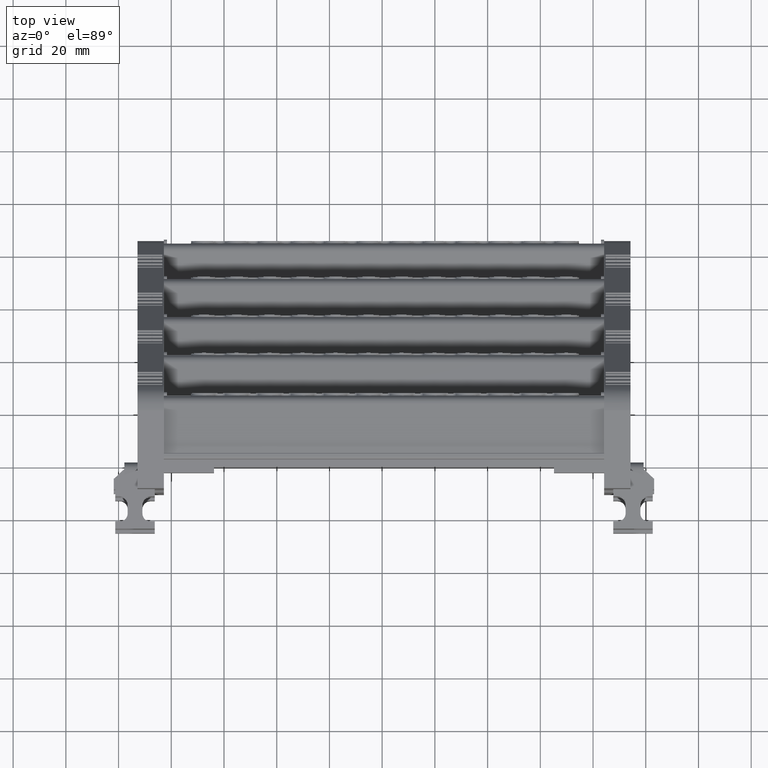
[diagram: clean part render]
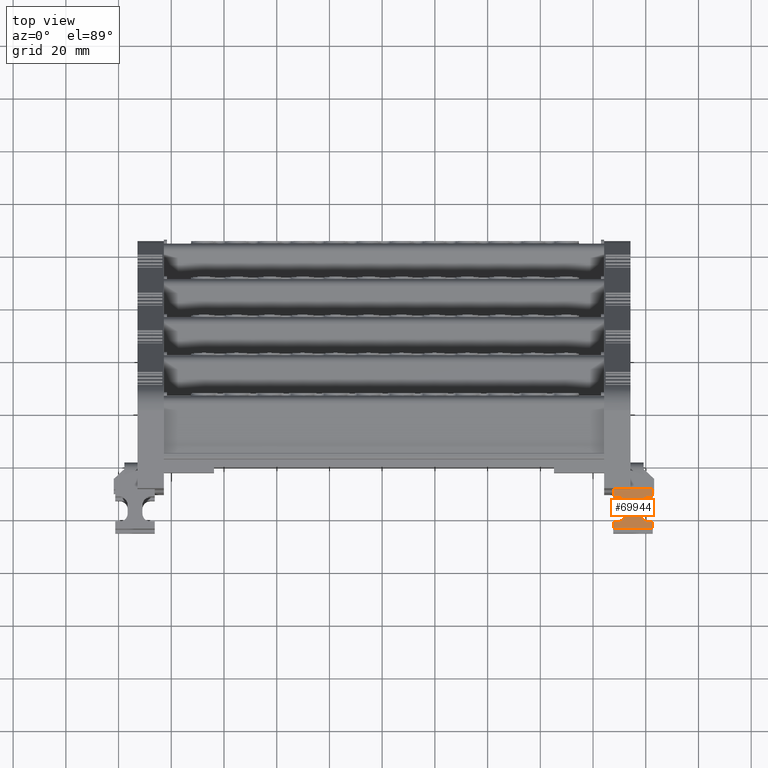
[diagram: same view with one face highlighted and labeled with its STEP entity id]
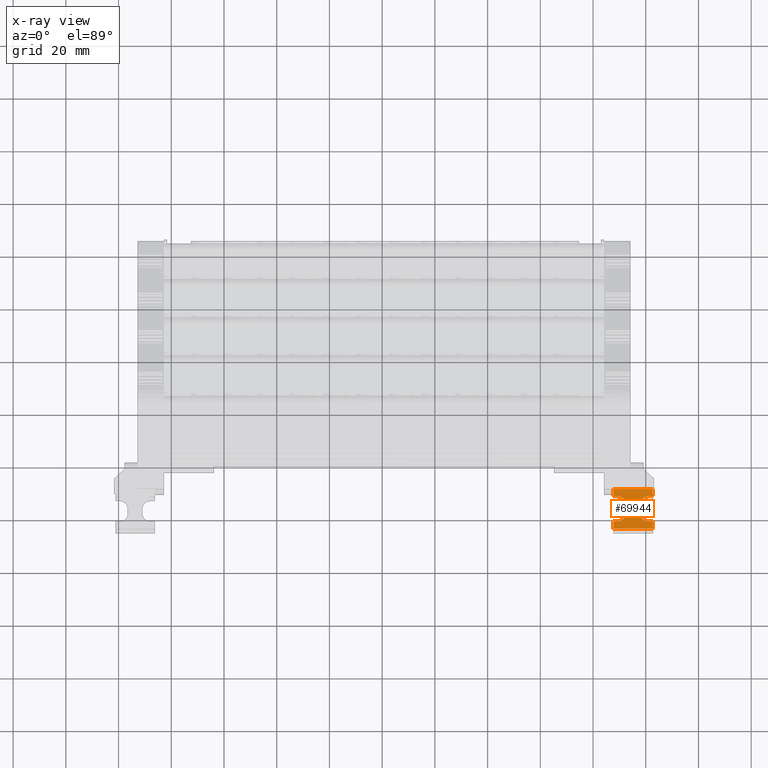
[diagram: x-ray of the same camera — body ghosted, the highlighted face saturated]
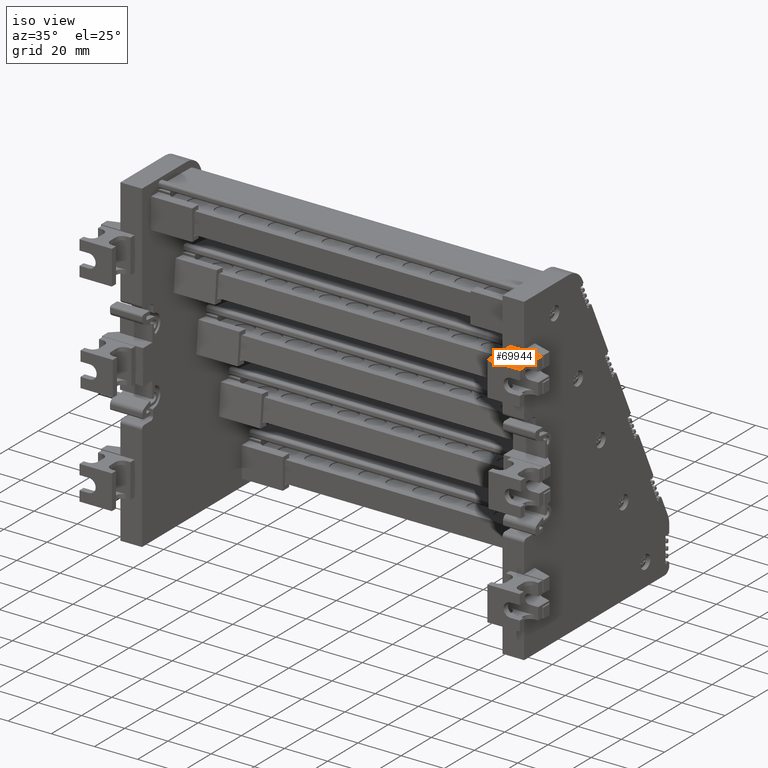
[diagram: same view with one face highlighted and labeled with its STEP entity id]
A machine part, top view. The second image highlights one B-rep face of the part: STEP entity #69944.
The next image is the same camera in x-ray: the body ghosted, the highlighted face saturated — about 0% of this face is hidden behind the body in this view.
A second angle (iso view) of the same face is appended — the face is thin or edge-on in the first view.
In plain terms, the highlighted planar face has unit normal (0, 0, -1).
Its self-contained STEP definition (entity closure, byte-faithful):
#25483 = ORIENTED_EDGE ( 'NONE', *, *, #184912, .F. ) ;
#25487 = ORIENTED_EDGE ( 'NONE', *, *, #184888, .T. ) ;
#25501 = ORIENTED_EDGE ( 'NONE', *, *, #184913, .F. ) ;
#25506 = ORIENTED_EDGE ( 'NONE', *, *, #184908, .F. ) ;
#25522 = ORIENTED_EDGE ( 'NONE', *, *, #184884, .F. ) ;
#25546 = ORIENTED_EDGE ( 'NONE', *, *, #139497, .T. ) ;
#25565 = ORIENTED_EDGE ( 'NONE', *, *, #184921, .F. ) ;
#25590 = ORIENTED_EDGE ( 'NONE', *, *, #184900, .F. ) ;
#25618 = ORIENTED_EDGE ( 'NONE', *, *, #139876, .F. ) ;
#25620 = ORIENTED_EDGE ( 'NONE', *, *, #184892, .T. ) ;
#25658 = ORIENTED_EDGE ( 'NONE', *, *, #184883, .T. ) ;
#25665 = ORIENTED_EDGE ( 'NONE', *, *, #184972, .F. ) ;
#25669 = ORIENTED_EDGE ( 'NONE', *, *, #184886, .F. ) ;
#25713 = ORIENTED_EDGE ( 'NONE', *, *, #184987, .T. ) ;
#25732 = ORIENTED_EDGE ( 'NONE', *, *, #184918, .F. ) ;
#25739 = ORIENTED_EDGE ( 'NONE', *, *, #185003, .F. ) ;
#37704 = DIRECTION ( 'NONE',  ( 0.0000000000000000000, 0.0000000000000000000, -1.000000000000000000 ) ) ;
#37721 = PLANE ( 'NONE',  #39354 ) ;
#37742 = FACE_OUTER_BOUND ( 'NONE', #149703, .T. ) ;
#37831 = DIRECTION ( 'NONE',  ( -1.000000000000000000, 0.0000000000000000000, -0.0000000000000000000 ) ) ;
#37838 = CARTESIAN_POINT ( 'NONE',  ( 47.64746846283503600, 89.68516386645208600, -292.2431131321286000 ) ) ;
#39354 = AXIS2_PLACEMENT_3D ( 'NONE', #37838, #37704, #37831 ) ;
#58407 = B_SPLINE_CURVE_WITH_KNOTS ( 'NONE', 3,
 ( #158381, #158314, #158383, #158362, #158391, #158308, #158331, #158343, #158397, #158393 ),
 .UNSPECIFIED., .F., .F.,
 ( 4, 2, 2, 2, 4 ),
 ( 0.0000000000000000000, 0.2500000000000000000, 0.5000000000000000000, 0.7500000000000000000, 1.000000000000000000 ),
 .UNSPECIFIED. ) ;
#58414 = B_SPLINE_CURVE_WITH_KNOTS ( 'NONE', 3,
 ( #158011, #158047, #157987, #157997, #157999, #158058, #158015, #158003, #158005, #158049 ),
 .UNSPECIFIED., .F., .F.,
 ( 4, 2, 2, 2, 4 ),
 ( 0.0000000000000000000, 0.2500000000000000000, 0.5000000000000000000, 0.7500000000000000000, 1.000000000000000000 ),
 .UNSPECIFIED. ) ;
#58446 = B_SPLINE_CURVE_WITH_KNOTS ( 'NONE', 3,
 ( #158527, #158580, #158557, #158568, #158439, #158417, #158584, #158438, #158426, #158491 ),
 .UNSPECIFIED., .F., .F.,
 ( 4, 2, 2, 2, 4 ),
 ( 0.0000000000000000000, 0.2500000000000000000, 0.5000000000000000000, 0.7500000000000000000, 1.000000000000000000 ),
 .UNSPECIFIED. ) ;
#58599 = B_SPLINE_CURVE_WITH_KNOTS ( 'NONE', 3,
 ( #161239, #161247, #161521, #161395, #161343, #161509, #161467, #161517, #161452, #161339 ),
 .UNSPECIFIED., .F., .F.,
 ( 4, 2, 2, 2, 4 ),
 ( 0.0000000000000000000, 0.2500000000000000000, 0.5000000000000000000, 0.7500000000000000000, 1.000000000000000000 ),
 .UNSPECIFIED. ) ;
#69944 = ADVANCED_FACE ( 'NONE', ( #37742 ), #37721, .F. ) ;
#86122 = VECTOR ( 'NONE', #158280, 1000.000000000000000 ) ;
#86125 = VECTOR ( 'NONE', #160228, 1000.000000000000000 ) ;
#86132 = VECTOR ( 'NONE', #158150, 1000.000000000000000 ) ;
#86134 = VECTOR ( 'NONE', #157993, 1000.000000000000000 ) ;
#86136 = VECTOR ( 'NONE', #158078, 1000.000000000000000 ) ;
#86142 = VECTOR ( 'NONE', #158160, 1000.000000000000000 ) ;
#86144 = VECTOR ( 'NONE', #158306, 1000.000000000000000 ) ;
#86171 = VECTOR ( 'NONE', #158738, 1000.000000000000000 ) ;
#86180 = VECTOR ( 'NONE', #158369, 1000.000000000000000 ) ;
#86193 = VECTOR ( 'NONE', #160849, 1000.000000000000000 ) ;
#122724 = VECTOR ( 'NONE', #140856, 1000.000000000000000 ) ;
#122835 = VECTOR ( 'NONE', #147044, 1000.000000000000000 ) ;
#139497 = EDGE_CURVE ( 'NONE', #164686, #164675, #140888, .T. ) ;
#139876 = EDGE_CURVE ( 'NONE', #164686, #164722, #147040, .T. ) ;
#140856 = DIRECTION ( 'NONE',  ( -1.000000000000000000, 8.872512669851850700E-016, 0.0000000000000000000 ) ) ;
#140888 = LINE ( 'NONE', #140953, #122724 ) ;
#140953 = CARTESIAN_POINT ( 'NONE',  ( 54.19737582258961300, 89.68516386645208600, -292.2431131321286000 ) ) ;
#147040 = LINE ( 'NONE', #147187, #122835 ) ;
#147044 = DIRECTION ( 'NONE',  ( -0.0000000000000000000, -1.000000000000000000, -0.0000000000000000000 ) ) ;
#147187 = CARTESIAN_POINT ( 'NONE',  ( 62.64746846283501500, 89.68516386645208600, -292.2431131321286000 ) ) ;
#149703 = EDGE_LOOP ( 'NONE', ( #25618, #25546, #25565, #25658, #25732, #25669, #25522, #25487, #25506, #25590, #25483, #25620, #25501, #25665, #25739, #25713 ) ) ;
#157955 = CARTESIAN_POINT ( 'NONE',  ( 47.64746846283503600, 86.93516386645208600, -292.2431131321286000 ) ) ;
#157981 = LINE ( 'NONE', #157955, #86134 ) ;
#157987 = CARTESIAN_POINT ( 'NONE',  ( 50.13271211591287400, 77.51324583644716900, -292.2431131321286600 ) ) ;
#157993 = DIRECTION ( 'NONE',  ( 1.000000000000000000, 0.0000000000000000000, -0.0000000000000000000 ) ) ;
#157997 = CARTESIAN_POINT ( 'NONE',  ( 50.85832540394771700, 77.81380470138931600, -292.2431131321285400 ) ) ;
#157999 = CARTESIAN_POINT ( 'NONE',  ( 51.19110862275977800, 78.03616333925755600, -292.2431131321286000 ) ) ;
#158003 = CARTESIAN_POINT ( 'NONE',  ( 52.26938649283998500, 79.64992021337425900, -292.2431131321286000 ) ) ;
#158005 = CARTESIAN_POINT ( 'NONE',  ( 52.34746846283503200, 80.04246478475339200, -292.2431131321286000 ) ) ;
#158011 = CARTESIAN_POINT ( 'NONE',  ( 49.34746846283502500, 77.43516386645210000, -292.2431131321286000 ) ) ;
#158015 = CARTESIAN_POINT ( 'NONE',  ( 51.96882762789779500, 78.92430692533940800, -292.2431131321286000 ) ) ;
#158047 = CARTESIAN_POINT ( 'NONE',  ( 49.74016754453375500, 77.43516386645210000, -292.2431131321286000 ) ) ;
#158049 = CARTESIAN_POINT ( 'NONE',  ( 52.34746846283503200, 80.43516386645211500, -292.2431131321286000 ) ) ;
#158058 = CARTESIAN_POINT ( 'NONE',  ( 51.74646899002957000, 78.59152370652734000, -292.2431131321286000 ) ) ;
#158078 = DIRECTION ( 'NONE',  ( -1.000000000000000000, -0.0000000000000000000, -0.0000000000000000000 ) ) ;
#158084 = LINE ( 'NONE', #158162, #86132 ) ;
#158091 = LINE ( 'NONE', #158109, #86142 ) ;
#158109 = CARTESIAN_POINT ( 'NONE',  ( 47.64746846283503600, 77.43516386645208600, -292.2431131321286000 ) ) ;
#158150 = DIRECTION ( 'NONE',  ( 0.0000000000000000000, 1.000000000000000000, 0.0000000000000000000 ) ) ;
#158156 = CARTESIAN_POINT ( 'NONE',  ( 47.64746846283503600, 77.43516386645208600, -292.2431131321286000 ) ) ;
#158160 = DIRECTION ( 'NONE',  ( -1.000000000000000000, -0.0000000000000000000, -0.0000000000000000000 ) ) ;
#158162 = CARTESIAN_POINT ( 'NONE',  ( 52.34746846283503200, 89.68516386645208600, -292.2431131321286000 ) ) ;
#158183 = LINE ( 'NONE', #158156, #86136 ) ;
#158234 = CARTESIAN_POINT ( 'NONE',  ( 47.64746846283503600, 74.68516386645208600, -292.2431131321286000 ) ) ;
#158249 = LINE ( 'NONE', #158234, #86122 ) ;
#158280 = DIRECTION ( 'NONE',  ( -1.000000000000000000, 0.0000000000000000000, -0.0000000000000000000 ) ) ;
#158306 = DIRECTION ( 'NONE',  ( -0.0000000000000000000, -1.000000000000000000, -0.0000000000000000000 ) ) ;
#158308 = CARTESIAN_POINT ( 'NONE',  ( 59.10382830291028700, 78.03616333925757000, -292.2431131321286000 ) ) ;
#158314 = CARTESIAN_POINT ( 'NONE',  ( 57.94746846283501900, 80.04246478475340600, -292.2431131321286000 ) ) ;
#158327 = LINE ( 'NONE', #158406, #86180 ) ;
#158329 = CARTESIAN_POINT ( 'NONE',  ( 62.64746846283501500, 89.68516386645208600, -292.2431131321286000 ) ) ;
#158331 = CARTESIAN_POINT ( 'NONE',  ( 59.43661152172232700, 77.81380470138933000, -292.2431131321286000 ) ) ;
#158343 = CARTESIAN_POINT ( 'NONE',  ( 60.16222480975718400, 77.51324583644715500, -292.2431131321286000 ) ) ;
#158361 = LINE ( 'NONE', #158329, #86144 ) ;
#158362 = CARTESIAN_POINT ( 'NONE',  ( 58.32610929777224100, 78.92430692533940800, -292.2431131321285400 ) ) ;
#158369 = DIRECTION ( 'NONE',  ( 0.0000000000000000000, 1.000000000000000000, 0.0000000000000000000 ) ) ;
#158381 = CARTESIAN_POINT ( 'NONE',  ( 57.94746846283501900, 80.43516386645211500, -292.2431131321286000 ) ) ;
#158383 = CARTESIAN_POINT ( 'NONE',  ( 58.02555043283008000, 79.64992021337428700, -292.2431131321286600 ) ) ;
#158391 = CARTESIAN_POINT ( 'NONE',  ( 58.54846793564050200, 78.59152370652735400, -292.2431131321286000 ) ) ;
#158393 = CARTESIAN_POINT ( 'NONE',  ( 60.94746846283502600, 77.43516386645210000, -292.2431131321286000 ) ) ;
#158397 = CARTESIAN_POINT ( 'NONE',  ( 60.55476938113629600, 77.43516386645210000, -292.2431131321286000 ) ) ;
#158406 = CARTESIAN_POINT ( 'NONE',  ( 47.64746846283503600, 89.68516386645208600, -292.2431131321286000 ) ) ;
#158417 = CARTESIAN_POINT ( 'NONE',  ( 51.19110862275977100, 86.33416439364661700, -292.2431131321286000 ) ) ;
#158426 = CARTESIAN_POINT ( 'NONE',  ( 49.74016754453376200, 86.93516386645207200, -292.2431131321286000 ) ) ;
#158438 = CARTESIAN_POINT ( 'NONE',  ( 50.13271211591285900, 86.85708189645703200, -292.2431131321286000 ) ) ;
#158439 = CARTESIAN_POINT ( 'NONE',  ( 51.74646899002956200, 85.77880402637683200, -292.2431131321286000 ) ) ;
#158491 = CARTESIAN_POINT ( 'NONE',  ( 49.34746846283502500, 86.93516386645208600, -292.2431131321286000 ) ) ;
#158527 = CARTESIAN_POINT ( 'NONE',  ( 52.34746846283503200, 83.93516386645208600, -292.2431131321286000 ) ) ;
#158557 = CARTESIAN_POINT ( 'NONE',  ( 52.26938649283998500, 84.72040751952992800, -292.2431131321286600 ) ) ;
#158568 = CARTESIAN_POINT ( 'NONE',  ( 51.96882762789778800, 85.44602080756479300, -292.2431131321285400 ) ) ;
#158580 = CARTESIAN_POINT ( 'NONE',  ( 52.34746846283502500, 84.32786294815080900, -292.2431131321286000 ) ) ;
#158584 = CARTESIAN_POINT ( 'NONE',  ( 50.85832540394773100, 86.55652303151485700, -292.2431131321286000 ) ) ;
#158651 = CARTESIAN_POINT ( 'NONE',  ( 47.64746846283503600, 89.68516386645208600, -292.2431131321286000 ) ) ;
#158738 = DIRECTION ( 'NONE',  ( 0.0000000000000000000, 1.000000000000000000, 0.0000000000000000000 ) ) ;
#158816 = LINE ( 'NONE', #158651, #86171 ) ;
#160225 = CARTESIAN_POINT ( 'NONE',  ( 57.94746846283501900, 89.68516386645208600, -292.2431131321286000 ) ) ;
#160228 = DIRECTION ( 'NONE',  ( -0.0000000000000000000, -1.000000000000000000, -0.0000000000000000000 ) ) ;
#160386 = LINE ( 'NONE', #160225, #86125 ) ;
#160488 = VERTEX_POINT ( 'NONE', #221433 ) ;
#160581 = VERTEX_POINT ( 'NONE', #221516 ) ;
#160587 = VERTEX_POINT ( 'NONE', #221430 ) ;
#160609 = VERTEX_POINT ( 'NONE', #221409 ) ;
#160617 = VERTEX_POINT ( 'NONE', #221533 ) ;
#160714 = VERTEX_POINT ( 'NONE', #221601 ) ;
#160726 = VERTEX_POINT ( 'NONE', #221687 ) ;
#160747 = CARTESIAN_POINT ( 'NONE',  ( 47.64746846283503600, 86.93516386645208600, -292.2431131321286000 ) ) ;
#160806 = VERTEX_POINT ( 'NONE', #221623 ) ;
#160822 = VERTEX_POINT ( 'NONE', #221589 ) ;
#160826 = VERTEX_POINT ( 'NONE', #221690 ) ;
#160843 = VERTEX_POINT ( 'NONE', #221707 ) ;
#160845 = LINE ( 'NONE', #160747, #86193 ) ;
#160849 = DIRECTION ( 'NONE',  ( 1.000000000000000000, 0.0000000000000000000, -0.0000000000000000000 ) ) ;
#160868 = VERTEX_POINT ( 'NONE', #221695 ) ;
#160879 = VERTEX_POINT ( 'NONE', #221662 ) ;
#161239 = CARTESIAN_POINT ( 'NONE',  ( 60.94746846283502600, 86.93516386645208600, -292.2431131321286000 ) ) ;
#161247 = CARTESIAN_POINT ( 'NONE',  ( 60.55476938113628900, 86.93516386645208600, -292.2431131321286000 ) ) ;
#161339 = CARTESIAN_POINT ( 'NONE',  ( 57.94746846283501900, 83.93516386645208600, -292.2431131321286000 ) ) ;
#161343 = CARTESIAN_POINT ( 'NONE',  ( 59.10382830291028000, 86.33416439364664500, -292.2431131321286000 ) ) ;
#161395 = CARTESIAN_POINT ( 'NONE',  ( 59.43661152172231300, 86.55652303151485700, -292.2431131321285400 ) ) ;
#161452 = CARTESIAN_POINT ( 'NONE',  ( 57.94746846283501900, 84.32786294815080900, -292.2431131321286000 ) ) ;
#161467 = CARTESIAN_POINT ( 'NONE',  ( 58.32610929777226300, 85.44602080756480700, -292.2431131321286000 ) ) ;
#161509 = CARTESIAN_POINT ( 'NONE',  ( 58.54846793564048100, 85.77880402637683200, -292.2431131321286000 ) ) ;
#161517 = CARTESIAN_POINT ( 'NONE',  ( 58.02555043283006600, 84.72040751952995700, -292.2431131321286000 ) ) ;
#161521 = CARTESIAN_POINT ( 'NONE',  ( 60.16222480975717700, 86.85708189645703200, -292.2431131321286600 ) ) ;
#164675 = VERTEX_POINT ( 'NONE', #222419 ) ;
#164686 = VERTEX_POINT ( 'NONE', #222643 ) ;
#164722 = VERTEX_POINT ( 'NONE', #222774 ) ;
#184883 = EDGE_CURVE ( 'NONE', #160822, #160609, #157981, .T. ) ;
#184884 = EDGE_CURVE ( 'NONE', #160581, #160587, #58414, .T. ) ;
#184886 = EDGE_CURVE ( 'NONE', #160587, #160868, #158084, .T. ) ;
#184888 = EDGE_CURVE ( 'NONE', #160581, #160806, #158091, .T. ) ;
#184892 = EDGE_CURVE ( 'NONE', #160726, #160714, #158183, .T. ) ;
#184900 = EDGE_CURVE ( 'NONE', #160843, #160879, #158249, .T. ) ;
#184908 = EDGE_CURVE ( 'NONE', #160879, #160806, #158327, .T. ) ;
#184912 = EDGE_CURVE ( 'NONE', #160726, #160843, #158361, .T. ) ;
#184913 = EDGE_CURVE ( 'NONE', #160617, #160714, #58407, .T. ) ;
#184918 = EDGE_CURVE ( 'NONE', #160868, #160609, #58446, .T. ) ;
#184921 = EDGE_CURVE ( 'NONE', #160822, #164675, #158816, .T. ) ;
#184972 = EDGE_CURVE ( 'NONE', #160826, #160617, #160386, .T. ) ;
#184987 = EDGE_CURVE ( 'NONE', #160488, #164722, #160845, .T. ) ;
#185003 = EDGE_CURVE ( 'NONE', #160488, #160826, #58599, .T. ) ;
#221409 = CARTESIAN_POINT ( 'NONE',  ( 49.34746846283502500, 86.93516386645208600, -292.2431131321286000 ) ) ;
#221430 = CARTESIAN_POINT ( 'NONE',  ( 52.34746846283503200, 80.43516386645211500, -292.2431131321286000 ) ) ;
#221433 = CARTESIAN_POINT ( 'NONE',  ( 60.94746846283502600, 86.93516386645208600, -292.2431131321286000 ) ) ;
#221516 = CARTESIAN_POINT ( 'NONE',  ( 49.34746846283502500, 77.43516386645210000, -292.2431131321286000 ) ) ;
#221533 = CARTESIAN_POINT ( 'NONE',  ( 57.94746846283501900, 80.43516386645211500, -292.2431131321286000 ) ) ;
#221589 = CARTESIAN_POINT ( 'NONE',  ( 47.64746846283503600, 86.93516386645210000, -292.2431131321286000 ) ) ;
#221601 = CARTESIAN_POINT ( 'NONE',  ( 60.94746846283502600, 77.43516386645210000, -292.2431131321286000 ) ) ;
#221623 = CARTESIAN_POINT ( 'NONE',  ( 47.64746846283503600, 77.43516386645208600, -292.2431131321286000 ) ) ;
#221662 = CARTESIAN_POINT ( 'NONE',  ( 47.64746846283503600, 74.68516386645208600, -292.2431131321286000 ) ) ;
#221687 = CARTESIAN_POINT ( 'NONE',  ( 62.64746846283501500, 77.43516386645208600, -292.2431131321286000 ) ) ;
#221690 = CARTESIAN_POINT ( 'NONE',  ( 57.94746846283501900, 83.93516386645208600, -292.2431131321286000 ) ) ;
#221695 = CARTESIAN_POINT ( 'NONE',  ( 52.34746846283503200, 83.93516386645208600, -292.2431131321286000 ) ) ;
#221707 = CARTESIAN_POINT ( 'NONE',  ( 62.64746846283501500, 74.68516386645208600, -292.2431131321286000 ) ) ;
#222419 = CARTESIAN_POINT ( 'NONE',  ( 47.64746846283503600, 89.68516386645208600, -292.2431131321286000 ) ) ;
#222643 = CARTESIAN_POINT ( 'NONE',  ( 62.64746846283501500, 89.68516386645208600, -292.2431131321286000 ) ) ;
#222774 = CARTESIAN_POINT ( 'NONE',  ( 62.64746846283501500, 86.93516386645208600, -292.2431131321286000 ) ) ;